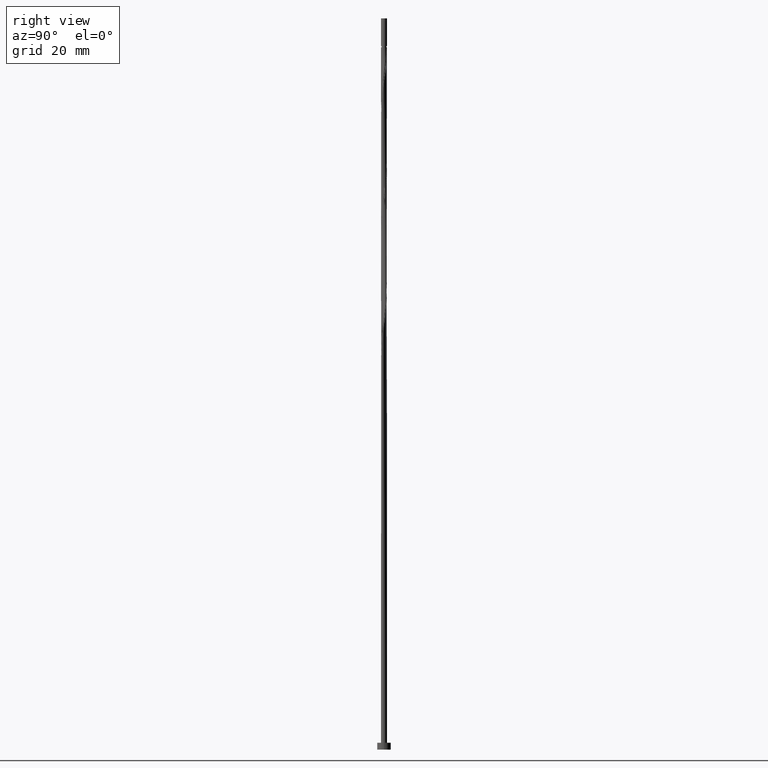
[diagram: clean part render]
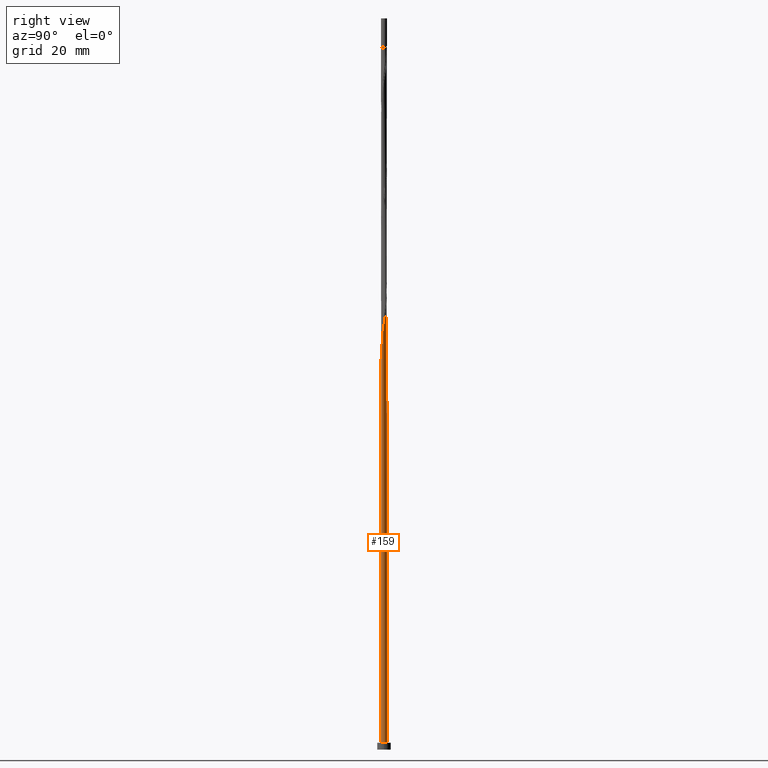
[diagram: same view with one face highlighted and labeled with its STEP entity id]
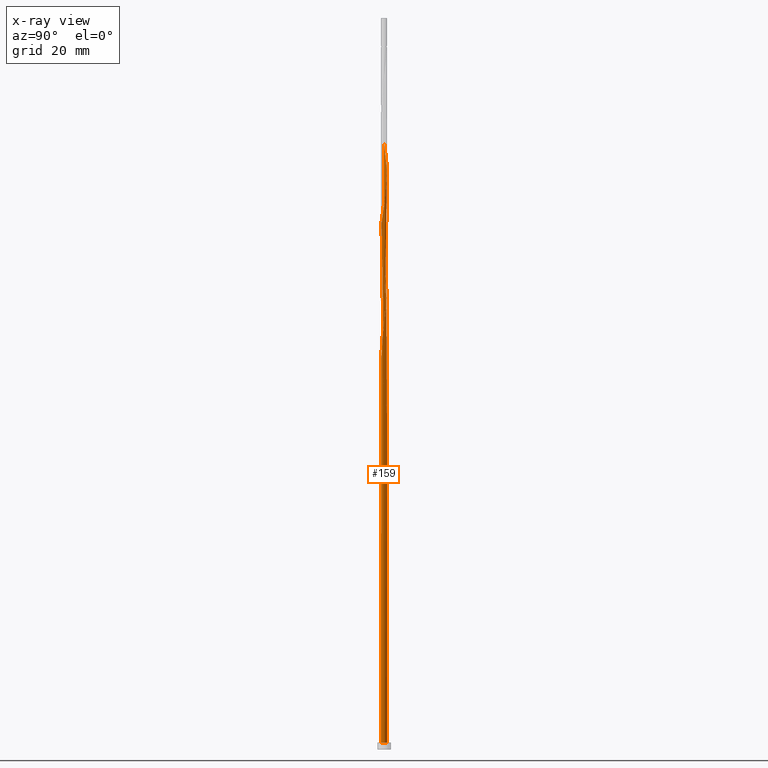
[diagram: x-ray of the same camera — body ghosted, the highlighted face saturated]
A machine part, right view. The second image highlights one B-rep face of the part: STEP entity #159.
The next image is the same camera in x-ray: the body ghosted, the highlighted face saturated — about 0% of this face is hidden behind the body in this view.
In plain terms, the highlighted cylindrical surface (bore or boss wall) has radius 0.65 mm, axis along (-0, -0, -1).
Its self-contained STEP definition (entity closure, byte-faithful):
#3 = CIRCLE ( 'NONE', #443, 0.6500000000000000222 ) ;
#10 = DIRECTION ( 'NONE',  ( 1.000000000000000000, 0.000000000000000000, 0.000000000000000000 ) ) ;
#15 = CARTESIAN_POINT ( 'NONE',  ( 0.6489244503836060218, 0.03737723497445555321, 93.08285817376187765 ) ) ;
#28 = VERTEX_POINT ( 'NONE', #1321 ) ;
#37 = CARTESIAN_POINT ( 'NONE',  ( -0.5257023275549216335, -0.3822787762920389909, 108.8404339313376283 ) ) ;
#49 = CARTESIAN_POINT ( 'NONE',  ( 0.1293483668238616102, 0.6370000000000007878, 73.68891877982248673 ) ) ;
#51 = CARTESIAN_POINT ( 'NONE',  ( -0.5806657178406771092, 0.3066941924870058567, 79.14346423436796840 ) ) ;
#72 = LINE ( 'NONE', #77, #1207 ) ;
#77 = CARTESIAN_POINT ( 'NONE',  ( -0.6500000000000000222, 0.000000000000000000, 160.0000000000000000 ) ) ;
#88 = CARTESIAN_POINT ( 'NONE',  ( -0.05535478959198525395, -0.6476386703009849866, 112.4767975677012686 ) ) ;
#99 = CARTESIAN_POINT ( 'NONE',  ( -0.5661176452965607231, 0.3193913143525951570, 77.32528241618608433 ) ) ;
#108 = CARTESIAN_POINT ( 'NONE',  ( 0.1293483668238613604, -0.6370000000000004547, 87.02225211315581532 ) ) ;
#116 = CARTESIAN_POINT ( 'NONE',  ( -0.2209351400986595548, 0.6184025124870298207, 100.9616460525497388 ) ) ;
#118 = CARTESIAN_POINT ( 'NONE',  ( 0.000000000000000000, 0.000000000000000000, 1.500000000000000000 ) ) ;
#120 = CARTESIAN_POINT ( 'NONE',  ( -0.1293483668238612772, 0.6370000000000005658, 73.68891877982248673 ) ) ;
#121 = EDGE_CURVE ( 'NONE', #1053, #1186, #145, .T. ) ;
#145 = LINE ( 'NONE', #988, #541 ) ;
#146 = CARTESIAN_POINT ( 'NONE',  ( -0.03776159354906324234, 0.6555974875129713109, 126.4161915070952062 ) ) ;
#154 = CARTESIAN_POINT ( 'NONE',  ( -0.6331688345267358908, 0.1469599502723646367, 131.8707369616406595 ) ) ;
#159 = ADVANCED_FACE ( 'NONE', ( #616 ), #1103, .T. ) ;
#161 = CARTESIAN_POINT ( 'NONE',  ( -0.3862098355493334689, 0.5311082436807419427, 128.8404339313376568 ) ) ;
#191 = EDGE_CURVE ( 'NONE', #1186, #1522, #317, .T. ) ;
#194 = CARTESIAN_POINT ( 'NONE',  ( -0.6489244503836060218, -0.03737723497445563647, 106.4161915070952205 ) ) ;
#197 = ORIENTED_EDGE ( 'NONE', *, *, #402, .T. ) ;
#203 = CARTESIAN_POINT ( 'NONE',  ( 0.2209351400986594716, -0.6184025124870299317, 114.2949793858830816 ) ) ;
#216 = ORIENTED_EDGE ( 'NONE', *, *, #906, .F. ) ;
#223 = CARTESIAN_POINT ( 'NONE',  ( -0.3967073124307650689, -0.5149012606936985703, 83.38588847679218929 ) ) ;
#231 = CARTESIAN_POINT ( 'NONE',  ( 0.05535478959198530946, 0.6476386703009849866, 99.14346423436791156 ) ) ;
#236 = CARTESIAN_POINT ( 'NONE',  ( -0.5201961070021324796, 0.4007867435937859657, 76.71922181012553210 ) ) ;
#242 = CARTESIAN_POINT ( 'NONE',  ( -0.1484711727330339515, 0.6396798530889988843, 75.50710059800428553 ) ) ;
#249 = CARTESIAN_POINT ( 'NONE',  ( 0.3226756875923638690, 0.5719391612903250710, 97.32528241618614118 ) ) ;
#259 = DIRECTION ( 'NONE',  ( -1.000000000000000000, 0.000000000000000000, 0.000000000000000000 ) ) ;
#268 = CARTESIAN_POINT ( 'NONE',  ( -0.2355734301626990213, 0.6058095071896618666, 76.11316120406490882 ) ) ;
#271 = CARTESIAN_POINT ( 'NONE',  ( 0.3967073124307648468, 0.5149012606936985703, 123.3858884767921893 ) ) ;
#275 = CARTESIAN_POINT ( 'NONE',  ( -0.5661176452965607231, 0.3193913143525951570, 130.6586157495194414 ) ) ;
#309 = CARTESIAN_POINT ( 'NONE',  ( 0.1293483668238613604, -0.6370000000000004547, 113.6889187798224725 ) ) ;
#317 =( BOUNDED_CURVE ( )  B_SPLINE_CURVE ( 2, ( #1007, #790, #1472, #1241, #654, #51, #397, #891, #780, #1357, #268, #242, #1013, #369, #488 ),
 .UNSPECIFIED., .F., .T. ) 
 B_SPLINE_CURVE_WITH_KNOTS ( ( 3, 2, 2, 2, 2, 2, 2, 3 ),
 ( 0.9295252162417511066, 0.9318181818181817677, 0.9431818181818182323, 0.9545454545454545858, 0.9659090909090909394, 0.9772727272727272929, 0.9886363636363636465, 1.000000000000000000 ),
 .UNSPECIFIED. ) 
 CURVE ( )  GEOMETRIC_REPRESENTATION_ITEM ( )  RATIONAL_B_SPLINE_CURVE ( ( 0.9061101570135960959, 0.9072237824201783152, 0.9090909090909560231, 0.8998376744372580394, 0.9090909090909560231, 0.8998376744372580394, 0.9090909090909560231, 0.8998376744372580394, 0.9090909090909560231, 0.8998376744372580394, 0.9090909090909560231, 0.8998376744372580394, 0.9090909090909560231, 0.8998376744372580394, 0.9090909090909560231 ) ) 
 REPRESENTATION_ITEM ( '' )  );
#322 = CARTESIAN_POINT ( 'NONE',  ( 0.03776159354906332560, -0.6555974875129713109, 113.0828581737619203 ) ) ;
#326 = CARTESIAN_POINT ( 'NONE',  ( -0.5257023275549216335, -0.3822787762920389909, 82.17376726467097114 ) ) ;
#345 = CARTESIAN_POINT ( 'NONE',  ( -0.1484711727330338404, -0.6396798530889986623, 85.20407029497400231 ) ) ;
#349 = CARTESIAN_POINT ( 'NONE',  ( -0.6120391835909891887, 0.2379958851114043483, 77.93134302224673604 ) ) ;
#369 = CARTESIAN_POINT ( 'NONE',  ( 0.03776159354906333254, 0.6555974875129716439, 74.29497938588309580 ) ) ;
#373 = CARTESIAN_POINT ( 'NONE',  ( 0.4707389372691664353, 0.4578633600970720141, 96.11316120406488039 ) ) ;
#378 = DIRECTION ( 'NONE',  ( 0.000000000000000000, -0.000000000000000000, -1.000000000000000000 ) ) ;
#391 = CARTESIAN_POINT ( 'NONE',  ( 0.6489244503836060218, 0.03737723497445555321, 119.7495248404285633 ) ) ;
#397 = CARTESIAN_POINT ( 'NONE',  ( -0.5257023275549215224, 0.3822787762920392129, 78.53740362830731669 ) ) ;
#399 = CARTESIAN_POINT ( 'NONE',  ( 0.5806657178406771092, 0.3066941924870057457, 121.5677066586103621 ) ) ;
#402 = EDGE_CURVE ( 'NONE', #1291, #28, #72, .T. ) ;
#408 = CARTESIAN_POINT ( 'NONE',  ( 0.4707389372691664353, 0.4578633600970720141, 122.7798278707315660 ) ) ;
#411 = CARTESIAN_POINT ( 'NONE',  ( 0.000000000000000000, 0.000000000000000000, 1.500000000000000000 ) ) ;
#425 = EDGE_CURVE ( 'NONE', #28, #1408, #1153, .T. ) ;
#435 = CARTESIAN_POINT ( 'NONE',  ( -0.2209351400986595548, 0.6184025124870298207, 127.6283127192164386 ) ) ;
#442 = CARTESIAN_POINT ( 'NONE',  ( -0.6542984854624824820, 0.05592401543332502917, 105.8101309010345830 ) ) ;
#443 = AXIS2_PLACEMENT_3D ( 'NONE', #750, #378, #259 ) ;
#445 = ORIENTED_EDGE ( 'NONE', *, *, #1473, .T. ) ;
#464 = CARTESIAN_POINT ( 'NONE',  ( -0.2209351400986595548, 0.6184025124870298207, 74.29497938588312422 ) ) ;
#467 = CARTESIAN_POINT ( 'NONE',  ( -0.3226756875923642021, -0.5719391612903248490, 83.99194908285275574 ) ) ;
#484 = CARTESIAN_POINT ( 'NONE',  ( 0.6435504153047295617, 0.1306784853822360870, 93.68891877982248673 ) ) ;
#488 = CARTESIAN_POINT ( 'NONE',  ( 0.1293483668238616102, 0.6370000000000007878, 73.68891877982248673 ) ) ;
#497 = CARTESIAN_POINT ( 'NONE',  ( -0.6500000000000006883, 6.487520980141320660E-16, 79.50613096718825545 ) ) ;
#499 = CARTESIAN_POINT ( 'NONE',  ( 0.2355734301626988825, 0.6058095071896616446, 97.93134302224672183 ) ) ;
#506 = CARTESIAN_POINT ( 'NONE',  ( 0.5661176452965605010, -0.3193913143525952680, 90.65861574951942714 ) ) ;
#513 = CARTESIAN_POINT ( 'NONE',  ( -0.3862098355493334689, 0.5311082436807419427, 102.1737672646709711 ) ) ;
#518 = AXIS2_PLACEMENT_3D ( 'NONE', #411, #1027, #907 ) ;
#520 = AXIS2_PLACEMENT_3D ( 'NONE', #118, #1197, #10 ) ;
#527 =( BOUNDED_CURVE ( )  B_SPLINE_CURVE ( 2, ( #553, #575, #1409, #583, #835, #1531, #326, #591, #223, #467, #959, #345, #847, #1308, #108, #726, #970, #984, #600, #1098, #506, #871, #1444, #625, #15, #484, #1329, #1460, #1315, #373, #864, #249, #499, #994, #231, #735, #1201, #116, #1089, #513, #549, #569, #1277, #1392, #1474, #442, #194, #1350, #1405, #1038, #37, #1252, #1482, #775, #1510, #941, #88, #322, #309, #203, #1009, #1505, #704, #827, #901, #1288, #1175, #1058, #391, #1366, #884, #399, #816, #408, #271, #694, #1234, #791, #894, #146, #1164, #435, #641, #161, #1119, #1359, #275, #782, #154, #646, #1125 ),
 .UNSPECIFIED., .F., .T. ) 
 B_SPLINE_CURVE_WITH_KNOTS ( ( 3, 2, 2, 2, 2, 2, 2, 2, 2, 2, 2, 2, 2, 2, 2, 2, 2, 2, 2, 2, 2, 2, 2, 2, 2, 2, 2, 2, 2, 2, 2, 2, 2, 2, 2, 2, 2, 2, 2, 2, 2, 2, 2, 2, 2, 3 ),
 ( 0.05452521624175142578, 0.05681818181818176772, 0.06818181818181823228, 0.07954545454545458583, 0.09090909090909093937, 0.1022727272727272929, 0.1136363636363636465, 0.1250000000000000000, 0.1363636363636363535, 0.1477272727272727071, 0.1590909090909090606, 0.1704545454545454142, 0.1818181818181817677, 0.1931818181818182323, 0.2045454545454545858, 0.2159090909090909394, 0.2272727272727272929, 0.2386363636363636465, 0.2500000000000000000, 0.2613636363636363535, 0.2727272727272727071, 0.2840909090909090606, 0.2954545454545454142, 0.3068181818181817677, 0.3181818181818182323, 0.3295454545454545858, 0.3409090909090909394, 0.3522727272727272929, 0.3636363636363636465, 0.3750000000000000000, 0.3863636363636363535, 0.3977272727272727071, 0.4090909090909090606, 0.4204545454545454142, 0.4318181818181817677, 0.4431818181818182323, 0.4545454545454545858, 0.4659090909090909394, 0.4772727272727272929, 0.4886363636363636465, 0.5000000000000000000, 0.5113636363636363535, 0.5227272727272727071, 0.5340909090909091717, 0.5454545454545454142, 0.5545252162417512176 ),
 .UNSPECIFIED. ) 
 CURVE ( )  GEOMETRIC_REPRESENTATION_ITEM ( )  RATIONAL_B_SPLINE_CURVE ( ( 0.9061101570135954297, 0.9072237824201776490, 0.9090909090909550239, 0.8998376744372569291, 0.9090909090909550239, 0.8998376744372569291, 0.9090909090909550239, 0.8998376744372569291, 0.9090909090909550239, 0.8998376744372569291, 0.9090909090909550239, 0.8998376744372569291, 0.9090909090909550239, 0.8998376744372569291, 0.9090909090909550239, 0.8998376744372569291, 0.9090909090909550239, 0.8998376744372569291, 0.9090909090909550239, 0.8998376744372569291, 0.9090909090909550239, 0.8998376744372569291, 0.9090909090909550239, 0.8998376744372569291, 0.9090909090909550239, 0.8998376744372569291, 0.9090909090909550239, 0.8998376744372569291, 0.9090909090909550239, 0.8998376744372569291, 0.9090909090909550239, 0.8998376744372569291, 0.9090909090909550239, 0.8998376744372569291, 0.9090909090909550239, 0.8998376744372569291, 0.9090909090909550239, 0.8998376744372569291, 0.9090909090909550239, 0.8998376744372569291, 0.9090909090909550239, 0.8998376744372569291, 0.9090909090909550239, 0.8998376744372569291, 0.9090909090909550239, 0.8998376744372569291, 0.9090909090909550239, 0.8998376744372569291, 0.9090909090909550239, 0.8998376744372569291, 0.9090909090909550239, 0.8998376744372569291, 0.9090909090909550239, 0.8998376744372569291, 0.9090909090909550239, 0.8998376744372569291, 0.9090909090909550239, 0.8998376744372569291, 0.9090909090909550239, 0.8998376744372569291, 0.9090909090909550239, 0.8998376744372569291, 0.9090909090909550239, 0.8998376744372569291, 0.9090909090909550239, 0.8998376744372569291, 0.9090909090909550239, 0.8998376744372569291, 0.9090909090909550239, 0.8998376744372569291, 0.9090909090909550239, 0.8998376744372569291, 0.9090909090909550239, 0.8998376744372569291, 0.9090909090909550239, 0.8998376744372569291, 0.9090909090909550239, 0.8998376744372569291, 0.9090909090909550239, 0.8998376744372569291, 0.9090909090909550239, 0.8998376744372569291, 0.9090909090909550239, 0.8998376744372569291, 0.9090909090909550239, 0.8998376744372569291, 0.9090909090909550239, 0.8998376744372569291, 0.9090909090909550239, 0.9017048011080346370, 0.9061101570135950967 ) ) 
 REPRESENTATION_ITEM ( '' )  );
#530 = DIRECTION ( 'NONE',  ( -0.000000000000000000, -0.000000000000000000, -1.000000000000000000 ) ) ;
#541 = VECTOR ( 'NONE', #1440, 1000.000000000000000 ) ;
#549 = CARTESIAN_POINT ( 'NONE',  ( -0.4532029712757327800, 0.4659474936372639542, 102.7798278707315518 ) ) ;
#553 = CARTESIAN_POINT ( 'NONE',  ( -0.6500000000000006883, 6.487520980141320660E-16, 79.50613096718825545 ) ) ;
#561 = ORIENTED_EDGE ( 'NONE', *, *, #693, .F. ) ;
#567 = CARTESIAN_POINT ( 'NONE',  ( -0.6500000000000005773, -2.580051571353032037E-16, 132.8394643005215983 ) ) ;
#569 = CARTESIAN_POINT ( 'NONE',  ( -0.5201961070021324796, 0.4007867435937859657, 103.3858884767922035 ) ) ;
#574 = ORIENTED_EDGE ( 'NONE', *, *, #121, .F. ) ;
#575 = CARTESIAN_POINT ( 'NONE',  ( -0.6500000000000005773, -0.01870409224048631344, 79.62822897190648064 ) ) ;
#583 = CARTESIAN_POINT ( 'NONE',  ( -0.6435504153047295617, -0.1306784853822361425, 80.35558544648914392 ) ) ;
#591 = CARTESIAN_POINT ( 'NONE',  ( -0.4707389372691661023, -0.4578633600970722362, 82.77982787073156601 ) ) ;
#600 = CARTESIAN_POINT ( 'NONE',  ( 0.4532029712757327800, -0.4659474936372639542, 89.44649453739822320 ) ) ;
#616 = FACE_OUTER_BOUND ( 'NONE', #1077, .T. ) ;
#623 = DIRECTION ( 'NONE',  ( -0.000000000000000000, -0.000000000000000000, -1.000000000000000000 ) ) ;
#625 = CARTESIAN_POINT ( 'NONE',  ( 0.6542984854624824820, -0.05592401543332501529, 92.47679756770126858 ) ) ;
#641 = CARTESIAN_POINT ( 'NONE',  ( -0.3035724878239963731, 0.5747553780838855486, 128.2343733252770335 ) ) ;
#646 = CARTESIAN_POINT ( 'NONE',  ( -0.6500000000000004663, 0.07444380280033065234, 132.3535043475502846 ) ) ;
#654 = CARTESIAN_POINT ( 'NONE',  ( -0.6121080665727033354, 0.2186863389346210829, 79.74952484042852063 ) ) ;
#693 = EDGE_CURVE ( 'NONE', #1291, #1053, #527, .T. ) ;
#694 = CARTESIAN_POINT ( 'NONE',  ( 0.3226756875923638690, 0.5719391612903250710, 123.9919490828527842 ) ) ;
#704 = CARTESIAN_POINT ( 'NONE',  ( 0.4532029712757327800, -0.4659474936372639542, 116.1131612040649372 ) ) ;
#712 = CARTESIAN_POINT ( 'NONE',  ( -0.6500000000000009104, -6.001424307277699212E-16, 81.20503992579004660 ) ) ;
#715 = CARTESIAN_POINT ( 'NONE',  ( -0.3862098355493334689, 0.5311082436807419427, 75.50710059800429974 ) ) ;
#726 = CARTESIAN_POINT ( 'NONE',  ( 0.2209351400986594716, -0.6184025124870299317, 87.62831271921643861 ) ) ;
#735 = CARTESIAN_POINT ( 'NONE',  ( -0.03776159354906324234, 0.6555974875129713109, 99.74952484042856327 ) ) ;
#750 = CARTESIAN_POINT ( 'NONE',  ( 0.000000000000000000, 0.000000000000000000, 73.68891877982248673 ) ) ;
#764 = ORIENTED_EDGE ( 'NONE', *, *, #191, .F. ) ;
#775 = CARTESIAN_POINT ( 'NONE',  ( -0.3226756875923642021, -0.5719391612903248490, 110.6586157495194698 ) ) ;
#780 = CARTESIAN_POINT ( 'NONE',  ( -0.3967073124307652909, 0.5149012606936989034, 77.32528241618609854 ) ) ;
#782 = CARTESIAN_POINT ( 'NONE',  ( -0.6120391835909891887, 0.2379958851114043483, 131.2646763555800646 ) ) ;
#790 = CARTESIAN_POINT ( 'NONE',  ( -0.6500000000000010214, 0.01870409224048376687, 81.08294192107183562 ) ) ;
#791 = CARTESIAN_POINT ( 'NONE',  ( 0.1484711727330339792, 0.6396798530889984402, 125.2040702949740165 ) ) ;
#793 = CIRCLE ( 'NONE', #520, 0.6500000000000000222 ) ;
#816 = CARTESIAN_POINT ( 'NONE',  ( 0.5257023275549217445, 0.3822787762920389354, 122.1737672646709569 ) ) ;
#827 = CARTESIAN_POINT ( 'NONE',  ( 0.5201961070021324796, -0.4007867435937862988, 116.7192218101255037 ) ) ;
#835 = CARTESIAN_POINT ( 'NONE',  ( -0.6121080665727033354, -0.2186863389346209718, 80.96164605254973878 ) ) ;
#847 = CARTESIAN_POINT ( 'NONE',  ( -0.05535478959198525395, -0.6476386703009849866, 85.81013090103462559 ) ) ;
#850 = CARTESIAN_POINT ( 'NONE',  ( -0.6331688345267358908, 0.1469599502723646367, 78.53740362830731669 ) ) ;
#864 = CARTESIAN_POINT ( 'NONE',  ( 0.3967073124307648468, 0.5149012606936985703, 96.71922181012550368 ) ) ;
#871 = CARTESIAN_POINT ( 'NONE',  ( 0.6120391835909891887, -0.2379958851114041540, 91.26467635558007885 ) ) ;
#884 = CARTESIAN_POINT ( 'NONE',  ( 0.6121080665727034464, 0.2186863389346208608, 120.9616460525497530 ) ) ;
#891 = CARTESIAN_POINT ( 'NONE',  ( -0.4707389372691662133, 0.4578633600970725692, 77.93134302224672183 ) ) ;
#894 = CARTESIAN_POINT ( 'NONE',  ( 0.05535478959198530946, 0.6476386703009849866, 125.8101309010345688 ) ) ;
#901 = CARTESIAN_POINT ( 'NONE',  ( 0.5661176452965605010, -0.3193913143525952680, 117.3252824161861270 ) ) ;
#906 = EDGE_CURVE ( 'NONE', #935, #1291, #1129, .T. ) ;
#907 = DIRECTION ( 'NONE',  ( 1.000000000000000000, 0.000000000000000000, 0.000000000000000000 ) ) ;
#935 = VERTEX_POINT ( 'NONE', #120 ) ;
#941 = CARTESIAN_POINT ( 'NONE',  ( -0.1484711727330338404, -0.6396798530889986623, 111.8707369616406879 ) ) ;
#959 = CARTESIAN_POINT ( 'NONE',  ( -0.2355734301626990768, -0.6058095071896616446, 84.59800968891339323 ) ) ;
#964 = CARTESIAN_POINT ( 'NONE',  ( -0.3035724878239963731, 0.5747553780838855486, 74.90103999194370488 ) ) ;
#970 = CARTESIAN_POINT ( 'NONE',  ( 0.3035724878239963176, -0.5747553780838857707, 88.23437332527700505 ) ) ;
#974 = CARTESIAN_POINT ( 'NONE',  ( 0.6500000000000000222, 0.000000000000000000, 1.500000000000000000 ) ) ;
#984 = CARTESIAN_POINT ( 'NONE',  ( 0.3862098355493334689, -0.5311082436807418317, 88.84043393133764255 ) ) ;
#988 = CARTESIAN_POINT ( 'NONE',  ( -0.6500000000000000222, 0.000000000000000000, 160.0000000000000000 ) ) ;
#990 = AXIS2_PLACEMENT_3D ( 'NONE', #1222, #623, #993 ) ;
#993 = DIRECTION ( 'NONE',  ( -1.000000000000000000, 0.000000000000000000, 0.000000000000000000 ) ) ;
#994 = CARTESIAN_POINT ( 'NONE',  ( 0.1484711727330339792, 0.6396798530889984402, 98.53740362830733091 ) ) ;
#1007 = CARTESIAN_POINT ( 'NONE',  ( -0.6500000000000009104, -6.001424307277699212E-16, 81.20503992579004660 ) ) ;
#1009 = CARTESIAN_POINT ( 'NONE',  ( 0.3035724878239963176, -0.5747553780838857707, 114.9010399919436765 ) ) ;
#1013 = CARTESIAN_POINT ( 'NONE',  ( -0.05535478959198530252, 0.6476386703009850976, 74.90103999194370488 ) ) ;
#1027 = DIRECTION ( 'NONE',  ( 0.000000000000000000, 0.000000000000000000, 1.000000000000000000 ) ) ;
#1038 = CARTESIAN_POINT ( 'NONE',  ( -0.5806657178406768871, -0.3066941924870059122, 108.2343733252770051 ) ) ;
#1053 = VERTEX_POINT ( 'NONE', #567 ) ;
#1058 = CARTESIAN_POINT ( 'NONE',  ( 0.6542984854624824820, -0.05592401543332501529, 119.1434642343679542 ) ) ;
#1065 = CARTESIAN_POINT ( 'NONE',  ( -0.6500000000000006883, 6.487520980141320660E-16, 79.50613096718825545 ) ) ;
#1077 = EDGE_LOOP ( 'NONE', ( #574, #561, #197, #1411, #1386, #1087, #216, #445, #764 ) ) ;
#1087 = ORIENTED_EDGE ( 'NONE', *, *, #402, .F. ) ;
#1089 = CARTESIAN_POINT ( 'NONE',  ( -0.3035724878239963731, 0.5747553780838855486, 101.5677066586103336 ) ) ;
#1098 = CARTESIAN_POINT ( 'NONE',  ( 0.5201961070021324796, -0.4007867435937862988, 90.05255514345881807 ) ) ;
#1103 = CYLINDRICAL_SURFACE ( 'NONE', #990, 0.6500000000000000222 ) ;
#1109 = EDGE_CURVE ( 'NONE', #1408, #28, #793, .T. ) ;
#1119 = CARTESIAN_POINT ( 'NONE',  ( -0.4532029712757327800, 0.4659474936372639542, 129.4464945373982232 ) ) ;
#1125 = CARTESIAN_POINT ( 'NONE',  ( -0.6500000000000005773, -2.580051571353032037E-16, 132.8394643005215983 ) ) ;
#1129 =( BOUNDED_CURVE ( )  B_SPLINE_CURVE ( 2, ( #1191, #464, #964, #715, #1324, #236, #99, #349, #850, #1198, #1065 ),
 .UNSPECIFIED., .F., .T. ) 
 B_SPLINE_CURVE_WITH_KNOTS ( ( 3, 2, 2, 2, 2, 3 ),
 ( 0.000000000000000000, 0.01136363636363635354, 0.02272727272727270709, 0.03409090909090906063, 0.04545454545454541417, 0.05452521624175142578 ),
 .UNSPECIFIED. ) 
 CURVE ( )  GEOMETRIC_REPRESENTATION_ITEM ( )  RATIONAL_B_SPLINE_CURVE ( ( 0.9090909090909550239, 0.8998376744372569291, 0.9090909090909550239, 0.8998376744372569291, 0.9090909090909550239, 0.8998376744372569291, 0.9090909090909550239, 0.8998376744372569291, 0.9090909090909550239, 0.9017048011080344150, 0.9061101570135954297 ) ) 
 REPRESENTATION_ITEM ( '' )  );
#1153 = CIRCLE ( 'NONE', #518, 0.6500000000000000222 ) ;
#1164 = CARTESIAN_POINT ( 'NONE',  ( -0.1293483668238612772, 0.6370000000000004547, 127.0222521131558153 ) ) ;
#1175 = CARTESIAN_POINT ( 'NONE',  ( 0.6331688345267358908, -0.1469599502723646089, 118.5374036283073167 ) ) ;
#1186 = VERTEX_POINT ( 'NONE', #712 ) ;
#1191 = CARTESIAN_POINT ( 'NONE',  ( -0.1293483668238612772, 0.6370000000000005658, 73.68891877982248673 ) ) ;
#1197 = DIRECTION ( 'NONE',  ( 0.000000000000000000, 0.000000000000000000, 1.000000000000000000 ) ) ;
#1198 = CARTESIAN_POINT ( 'NONE',  ( -0.6500000000000010214, 0.07444380280032825148, 79.02017101421699863 ) ) ;
#1201 = CARTESIAN_POINT ( 'NONE',  ( -0.1293483668238612772, 0.6370000000000004547, 100.3555854464891297 ) ) ;
#1207 = VECTOR ( 'NONE', #530, 1000.000000000000000 ) ;
#1222 = CARTESIAN_POINT ( 'NONE',  ( 0.000000000000000000, 0.000000000000000000, 160.0000000000000000 ) ) ;
#1234 = CARTESIAN_POINT ( 'NONE',  ( 0.2355734301626988825, 0.6058095071896616446, 124.5980096889134074 ) ) ;
#1241 = CARTESIAN_POINT ( 'NONE',  ( -0.6435504153047297837, 0.1306784853822362258, 80.35558544648914392 ) ) ;
#1252 = CARTESIAN_POINT ( 'NONE',  ( -0.4707389372691661023, -0.4578633600970722362, 109.4464945373982232 ) ) ;
#1277 = CARTESIAN_POINT ( 'NONE',  ( -0.5661176452965607231, 0.3193913143525951570, 103.9919490828527699 ) ) ;
#1288 = CARTESIAN_POINT ( 'NONE',  ( 0.6120391835909891887, -0.2379958851114041540, 117.9313430222467218 ) ) ;
#1291 = VERTEX_POINT ( 'NONE', #497 ) ;
#1308 = CARTESIAN_POINT ( 'NONE',  ( 0.03776159354906332560, -0.6555974875129713109, 86.41619150709520625 ) ) ;
#1315 = CARTESIAN_POINT ( 'NONE',  ( 0.5257023275549217445, 0.3822787762920389354, 95.50710059800429974 ) ) ;
#1321 = CARTESIAN_POINT ( 'NONE',  ( -0.6500000000000000222, 0.000000000000000000, 1.500000000000000000 ) ) ;
#1324 = CARTESIAN_POINT ( 'NONE',  ( -0.4532029712757327800, 0.4659474936372639542, 76.11316120406492303 ) ) ;
#1329 = CARTESIAN_POINT ( 'NONE',  ( 0.6121080665727034464, 0.2186863389346208608, 94.29497938588312422 ) ) ;
#1350 = CARTESIAN_POINT ( 'NONE',  ( -0.6435504153047295617, -0.1306784853822361425, 107.0222521131558437 ) ) ;
#1357 = CARTESIAN_POINT ( 'NONE',  ( -0.3226756875923642576, 0.5719391612903250710, 76.71922181012551789 ) ) ;
#1359 = CARTESIAN_POINT ( 'NONE',  ( -0.5201961070021324796, 0.4007867435937859657, 130.0525551434588465 ) ) ;
#1366 = CARTESIAN_POINT ( 'NONE',  ( 0.6435504153047295617, 0.1306784853822360870, 120.3555854464891581 ) ) ;
#1386 = ORIENTED_EDGE ( 'NONE', *, *, #1109, .T. ) ;
#1392 = CARTESIAN_POINT ( 'NONE',  ( -0.6120391835909891887, 0.2379958851114043483, 104.5980096889134074 ) ) ;
#1405 = CARTESIAN_POINT ( 'NONE',  ( -0.6121080665727033354, -0.2186863389346209718, 107.6283127192164244 ) ) ;
#1408 = VERTEX_POINT ( 'NONE', #974 ) ;
#1409 = CARTESIAN_POINT ( 'NONE',  ( -0.6489244503836060218, -0.03737723497445563647, 79.74952484042852063 ) ) ;
#1411 = ORIENTED_EDGE ( 'NONE', *, *, #425, .T. ) ;
#1440 = DIRECTION ( 'NONE',  ( -0.000000000000000000, -0.000000000000000000, -1.000000000000000000 ) ) ;
#1444 = CARTESIAN_POINT ( 'NONE',  ( 0.6331688345267358908, -0.1469599502723646089, 91.87073696164061687 ) ) ;
#1460 = CARTESIAN_POINT ( 'NONE',  ( 0.5806657178406771092, 0.3066941924870057457, 94.90103999194371909 ) ) ;
#1472 = CARTESIAN_POINT ( 'NONE',  ( -0.6489244503836064659, 0.03737723497445571280, 80.96164605254975299 ) ) ;
#1473 = EDGE_CURVE ( 'NONE', #935, #1522, #3, .T. ) ;
#1474 = CARTESIAN_POINT ( 'NONE',  ( -0.6331688345267358908, 0.1469599502723646367, 105.2040702949740165 ) ) ;
#1482 = CARTESIAN_POINT ( 'NONE',  ( -0.3967073124307650689, -0.5149012606936985703, 110.0525551434588323 ) ) ;
#1505 = CARTESIAN_POINT ( 'NONE',  ( 0.3862098355493334689, -0.5311082436807418317, 115.5071005980043140 ) ) ;
#1510 = CARTESIAN_POINT ( 'NONE',  ( -0.2355734301626990768, -0.6058095071896616446, 111.2646763555800504 ) ) ;
#1522 = VERTEX_POINT ( 'NONE', #49 ) ;
#1531 = CARTESIAN_POINT ( 'NONE',  ( -0.5806657178406768871, -0.3066941924870059122, 81.56770665861037628 ) ) ;